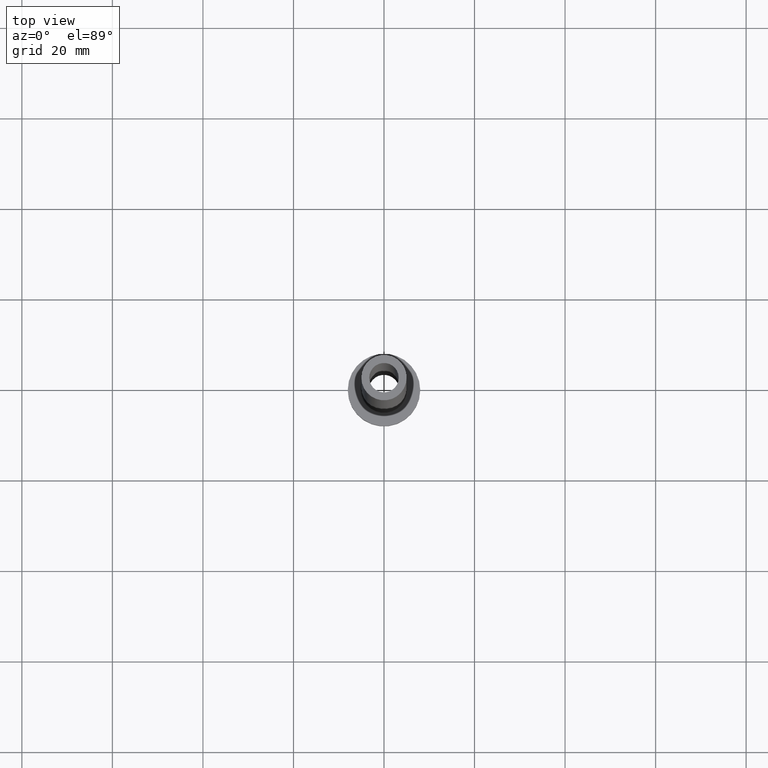
[diagram: clean part render]
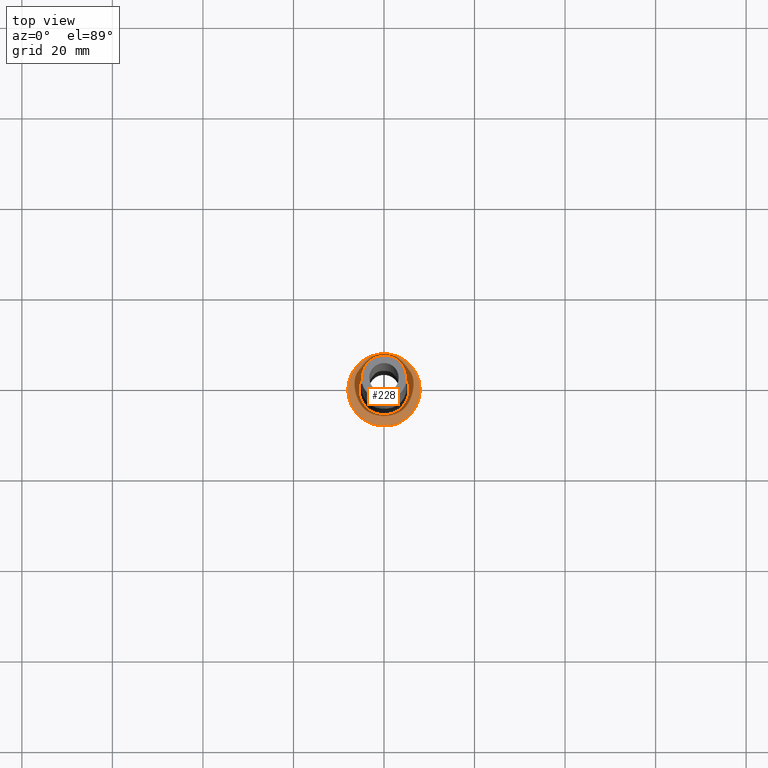
[diagram: same view with one face highlighted and labeled with its STEP entity id]
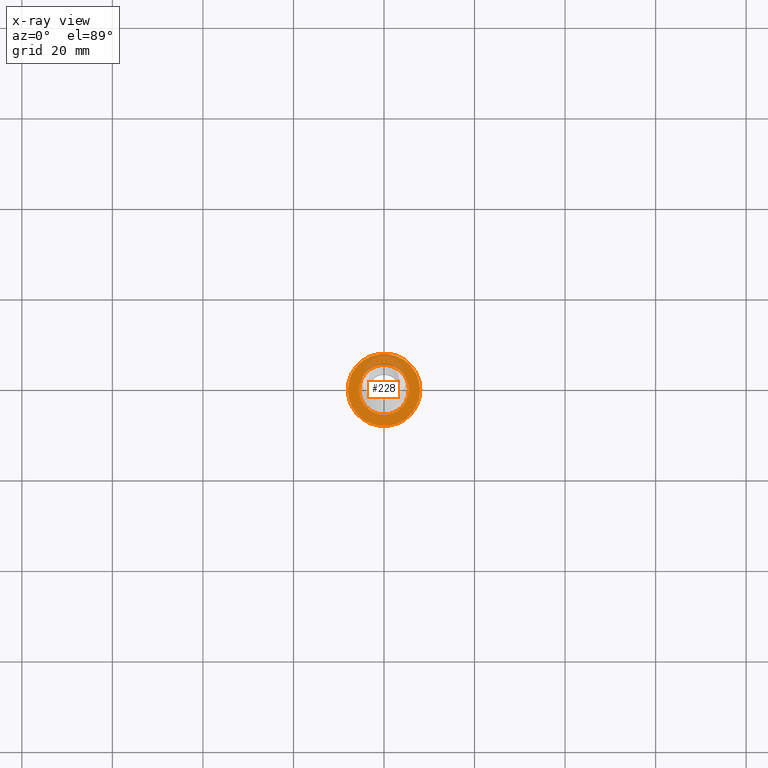
[diagram: x-ray of the same camera — body ghosted, the highlighted face saturated]
A machine part, top view. The second image highlights one B-rep face of the part: STEP entity #228.
The next image is the same camera in x-ray: the body ghosted, the highlighted face saturated — about 19% of this face is hidden behind the body in this view.
In plain terms, the highlighted planar face has unit normal (0, 0, 1).
Its self-contained STEP definition (entity closure, byte-faithful):
#6 = DIRECTION ( 'NONE',  ( 1.000000000000000000, 0.000000000000000000, 0.000000000000000000 ) ) ;
#7 = VERTEX_POINT ( 'NONE', #459 ) ;
#12 = VERTEX_POINT ( 'NONE', #312 ) ;
#25 = ORIENTED_EDGE ( 'NONE', *, *, #136, .T. ) ;
#28 = ORIENTED_EDGE ( 'NONE', *, *, #401, .T. ) ;
#29 = EDGE_LOOP ( 'NONE', ( #178, #28 ) ) ;
#33 = CIRCLE ( 'NONE', #283, 5.500000000000000000 ) ;
#50 = DIRECTION ( 'NONE',  ( 1.000000000000000000, 0.000000000000000000, 0.000000000000000000 ) ) ;
#61 = CARTESIAN_POINT ( 'NONE',  ( 0.000000000000000000, 0.000000000000000000, 5.000000000000000000 ) ) ;
#75 = EDGE_CURVE ( 'NONE', #371, #348, #346, .T. ) ;
#104 = DIRECTION ( 'NONE',  ( 1.000000000000000000, 0.000000000000000000, 0.000000000000000000 ) ) ;
#109 = EDGE_CURVE ( 'NONE', #7, #12, #438, .T. ) ;
#130 = AXIS2_PLACEMENT_3D ( 'NONE', #254, #326, #258 ) ;
#136 = EDGE_CURVE ( 'NONE', #12, #7, #250, .T. ) ;
#145 = ORIENTED_EDGE ( 'NONE', *, *, #109, .T. ) ;
#169 = FACE_BOUND ( 'NONE', #29, .T. ) ;
#178 = ORIENTED_EDGE ( 'NONE', *, *, #75, .T. ) ;
#186 = CARTESIAN_POINT ( 'NONE',  ( 0.000000000000000000, 0.000000000000000000, 5.000000000000000000 ) ) ;
#209 = CARTESIAN_POINT ( 'NONE',  ( 0.000000000000000000, 0.000000000000000000, 5.000000000000000000 ) ) ;
#219 = DIRECTION ( 'NONE',  ( 0.000000000000000000, 0.000000000000000000, 1.000000000000000000 ) ) ;
#227 = AXIS2_PLACEMENT_3D ( 'NONE', #186, #324, #6 ) ;
#228 = ADVANCED_FACE ( 'NONE', ( #169, #375 ), #236, .T. ) ;
#236 = PLANE ( 'NONE',  #355 ) ;
#239 = AXIS2_PLACEMENT_3D ( 'NONE', #293, #219, #50 ) ;
#241 = CARTESIAN_POINT ( 'NONE',  ( 5.500000000000000000, 0.000000000000000000, 5.000000000000002665 ) ) ;
#245 = CARTESIAN_POINT ( 'NONE',  ( -5.500000000000000000, 6.735557395310442023E-16, 5.000000000000002665 ) ) ;
#250 = CIRCLE ( 'NONE', #227, 8.000000000000000000 ) ;
#254 = CARTESIAN_POINT ( 'NONE',  ( 0.000000000000000000, 0.000000000000000000, 5.000000000000000000 ) ) ;
#258 = DIRECTION ( 'NONE',  ( 1.000000000000000000, 0.000000000000000000, 0.000000000000000000 ) ) ;
#283 = AXIS2_PLACEMENT_3D ( 'NONE', #209, #411, #104 ) ;
#293 = CARTESIAN_POINT ( 'NONE',  ( 0.000000000000000000, 0.000000000000000000, 5.000000000000000000 ) ) ;
#306 = DIRECTION ( 'NONE',  ( 1.000000000000000000, 0.000000000000000000, -0.000000000000000000 ) ) ;
#312 = CARTESIAN_POINT ( 'NONE',  ( 8.000000000000000000, 9.797174393178825657E-16, 5.000000000000000000 ) ) ;
#324 = DIRECTION ( 'NONE',  ( 0.000000000000000000, 0.000000000000000000, 1.000000000000000000 ) ) ;
#326 = DIRECTION ( 'NONE',  ( -0.000000000000000000, -0.000000000000000000, -1.000000000000000000 ) ) ;
#346 = CIRCLE ( 'NONE', #130, 5.500000000000000000 ) ;
#348 = VERTEX_POINT ( 'NONE', #245 ) ;
#355 = AXIS2_PLACEMENT_3D ( 'NONE', #61, #452, #306 ) ;
#371 = VERTEX_POINT ( 'NONE', #241 ) ;
#375 = FACE_OUTER_BOUND ( 'NONE', #380, .T. ) ;
#380 = EDGE_LOOP ( 'NONE', ( #145, #25 ) ) ;
#401 = EDGE_CURVE ( 'NONE', #348, #371, #33, .T. ) ;
#411 = DIRECTION ( 'NONE',  ( -0.000000000000000000, -0.000000000000000000, -1.000000000000000000 ) ) ;
#438 = CIRCLE ( 'NONE', #239, 8.000000000000000000 ) ;
#452 = DIRECTION ( 'NONE',  ( 0.000000000000000000, 0.000000000000000000, 1.000000000000000000 ) ) ;
#459 = CARTESIAN_POINT ( 'NONE',  ( -8.000000000000000000, 0.000000000000000000, 5.000000000000000000 ) ) ;